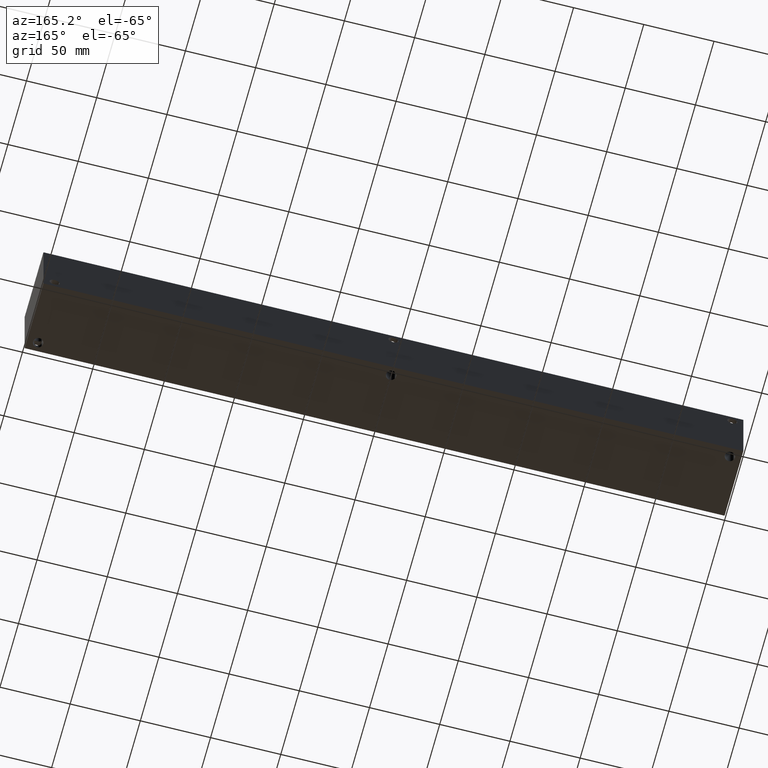
[diagram: clean part render]
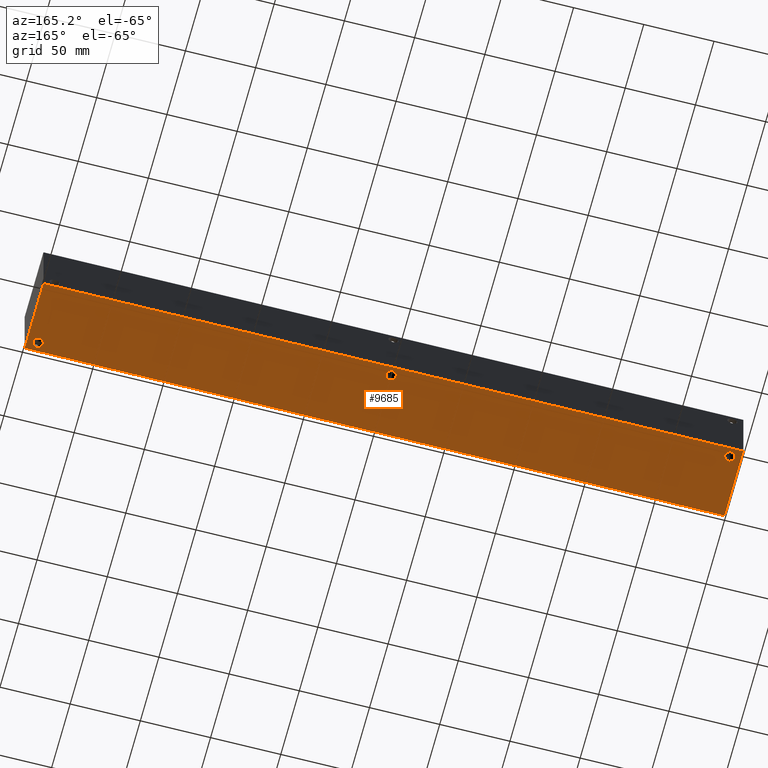
[diagram: same view with one face highlighted and labeled with its STEP entity id]
A machine part, auxiliary view. The second image highlights one B-rep face of the part: STEP entity #9685.
In plain terms, the highlighted planar face has unit normal (0, 0, 1).
Its self-contained STEP definition (entity closure, byte-faithful):
#509=CIRCLE('',#10414,3.5687);
#510=CIRCLE('',#10416,3.5687);
#511=CIRCLE('',#10418,3.5687);
#600=FACE_BOUND('',#1952,.T.);
#601=FACE_BOUND('',#1953,.T.);
#602=FACE_BOUND('',#1954,.T.);
#829=PLANE('',#10424);
#1346=FACE_OUTER_BOUND('',#1951,.T.);
#1951=EDGE_LOOP('',(#8716,#8717,#8718,#8719));
#1952=EDGE_LOOP('',(#8720));
#1953=EDGE_LOOP('',(#8721));
#1954=EDGE_LOOP('',(#8722));
#2675=LINE('',#17394,#3403);
#2678=LINE('',#17399,#3406);
#2680=LINE('',#17403,#3408);
#2682=LINE('',#17406,#3410);
#3403=VECTOR('',#12587,10.);
#3406=VECTOR('',#12592,10.);
#3408=VECTOR('',#12596,10.);
#3410=VECTOR('',#12600,10.);
#4612=VERTEX_POINT('',#17380);
#4613=VERTEX_POINT('',#17384);
#4614=VERTEX_POINT('',#17388);
#4615=VERTEX_POINT('',#17392);
#4616=VERTEX_POINT('',#17393);
#4617=VERTEX_POINT('',#17398);
#4618=VERTEX_POINT('',#17402);
#5974=EDGE_CURVE('',#4612,#4612,#509,.T.);
#5976=EDGE_CURVE('',#4613,#4613,#510,.T.);
#5978=EDGE_CURVE('',#4614,#4614,#511,.T.);
#5979=EDGE_CURVE('',#4615,#4616,#2675,.T.);
#5982=EDGE_CURVE('',#4617,#4615,#2678,.T.);
#5984=EDGE_CURVE('',#4618,#4617,#2680,.T.);
#5986=EDGE_CURVE('',#4616,#4618,#2682,.T.);
#8716=ORIENTED_EDGE('',*,*,#5986,.F.);
#8717=ORIENTED_EDGE('',*,*,#5979,.F.);
#8718=ORIENTED_EDGE('',*,*,#5982,.F.);
#8719=ORIENTED_EDGE('',*,*,#5984,.F.);
#8720=ORIENTED_EDGE('',*,*,#5974,.T.);
#8721=ORIENTED_EDGE('',*,*,#5976,.T.);
#8722=ORIENTED_EDGE('',*,*,#5978,.T.);
#9685=ADVANCED_FACE('',(#1346,#600,#601,#602),#829,.F.);
#10414=AXIS2_PLACEMENT_3D('',#17382,#12573,#12574);
#10416=AXIS2_PLACEMENT_3D('',#17386,#12578,#12579);
#10418=AXIS2_PLACEMENT_3D('',#17390,#12583,#12584);
#10424=AXIS2_PLACEMENT_3D('',#17408,#12603,#12604);
#12573=DIRECTION('center_axis',(0.,0.,1.));
#12574=DIRECTION('ref_axis',(1.,0.,0.));
#12578=DIRECTION('center_axis',(0.,0.,1.));
#12579=DIRECTION('ref_axis',(1.,0.,0.));
#12583=DIRECTION('center_axis',(0.,0.,1.));
#12584=DIRECTION('ref_axis',(1.,0.,0.));
#12587=DIRECTION('',(0.,-1.,0.));
#12592=DIRECTION('',(-1.,0.,0.));
#12596=DIRECTION('',(0.,1.,0.));
#12600=DIRECTION('',(1.,0.,0.));
#12603=DIRECTION('center_axis',(0.,0.,1.));
#12604=DIRECTION('ref_axis',(1.,0.,0.));
#17380=CARTESIAN_POINT('',(245.6561,44.45,0.));
#17382=CARTESIAN_POINT('Origin',(249.2248,44.45,0.));
#17384=CARTESIAN_POINT('',(4.3561,44.45,0.));
#17386=CARTESIAN_POINT('Origin',(7.9248,44.45,0.));
#17388=CARTESIAN_POINT('',(486.9561,6.35,0.));
#17390=CARTESIAN_POINT('Origin',(490.5248,6.35,0.));
#17392=CARTESIAN_POINT('',(0.,50.8,0.));
#17393=CARTESIAN_POINT('',(0.,0.,0.));
#17394=CARTESIAN_POINT('',(0.,50.8,0.));
#17398=CARTESIAN_POINT('',(498.475,50.8,0.));
#17399=CARTESIAN_POINT('',(498.475,50.8,0.));
#17402=CARTESIAN_POINT('',(498.475,0.,0.));
#17403=CARTESIAN_POINT('',(498.475,0.,0.));
#17406=CARTESIAN_POINT('',(0.,0.,0.));
#17408=CARTESIAN_POINT('Origin',(249.2375,25.4,0.));